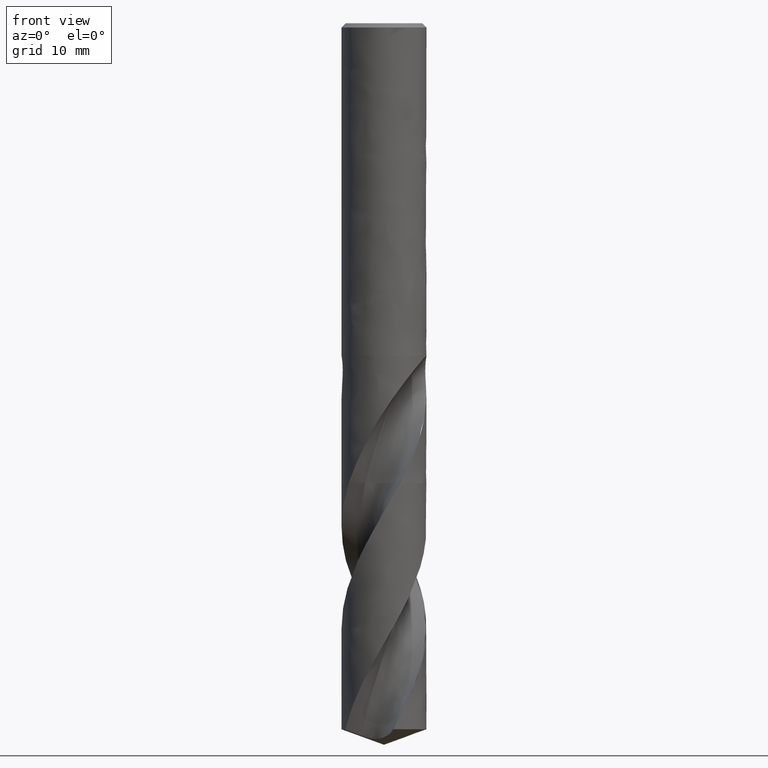
[diagram: clean part render]
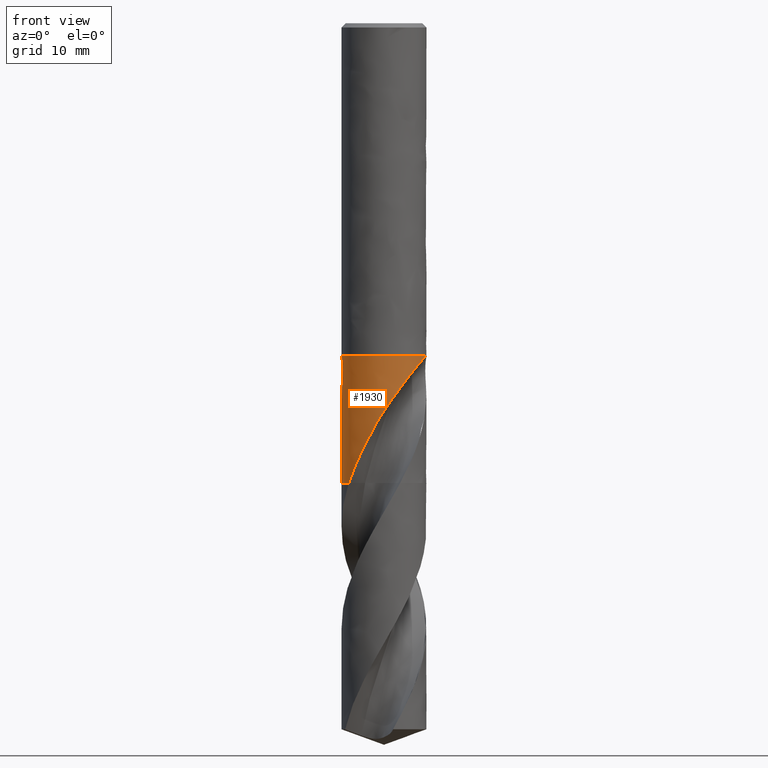
[diagram: same view with one face highlighted and labeled with its STEP entity id]
A machine part, front view. The second image highlights one B-rep face of the part: STEP entity #1930.
In plain terms, the highlighted face is a freeform B-spline surface patch.
Its self-contained STEP definition (entity closure, byte-faithful):
#143 = VERTEX_POINT('', #144);
#144 = CARTESIAN_POINT('', (-6., 3.24531401774049E-15, -47.));
#159 = EDGE_CURVE('', #160, #143, #162, .T.);
#160 = VERTEX_POINT('', #161);
#161 = CARTESIAN_POINT('', (5.94290858804293, -0.82573453007949, -47.));
#162 = CIRCLE('', #163, 6.);
#163 = AXIS2_PLACEMENT_3D('', #164, #165, #166);
#164 = CARTESIAN_POINT('', (1.76221774462768E-31, 2.87791997799628E-15, -47.));
#165 = DIRECTION('', (3.74939945665464E-33, 6.12323399573677E-17, -1.));
#166 = DIRECTION('', (-1., 6.12323399573677E-17, 0.));
#487 = VERTEX_POINT('', #488);
#488 = CARTESIAN_POINT('', (-4.98682465061266, -3.33640223954515, -65.));
#497 = VERTEX_POINT('', #498);
#498 = CARTESIAN_POINT('', (3.07263707445344, -5.15353290556044, -50.5253214813582));
#518 = EDGE_CURVE('', #497, #487, #519, .T.);
#519 = B_SPLINE_CURVE_WITH_KNOTS('', 3, (#520, #521, #522, #523, #524, #525, #526, #527, #528, #529, #530, #531, #532, #533, #534, #535, #536, #537, #538, #539, #540, #541, #542, #543, #544, #545, #546, #547, #548, #549, #550, #551, #552, #553, #554, #555, #556, #557, #558, #559, #560, #561, #562, #563, #564, #565, #566, #567, #568, #569, #570, #571, #572, #573, #574, #575, #576, #577, #578, #579, #580, #581, #582, #583, #584, #585, #586, #587, #588, #589, #590, #591, #592, #593, #594, #595, #596, #597, #598, #599, #600, #601, #602, #603, #604, #605, #606, #607, #608, #609, #610, #611, #612, #613, #614, #615, #616, #617, #618, #619, #620, #621, #622, #623, #624, #625, #626, #627, #628, #629, #630, #631, #632, #633, #634, #635, #636, #637), .UNSPECIFIED., .F., .U., (4, 3, 3, 3, 3, 3, 3, 3, 3, 3, 3, 3, 3, 3, 3, 3, 3, 3, 3, 3, 3, 3, 3, 3, 3, 3, 3, 3, 3, 3, 3, 3, 3, 3, 3, 3, 3, 3, 3, 4), (0., 0.441766088913571, 0.883576559323916, 1.32543345716794, 1.76735144714841, 2.20933782131439, 2.65139363075265, 3.09352578639469, 3.53573998083031, 3.97803517750119, 4.42042142618242, 4.86290743889696, 5.30548671905854, 5.36385870583969, 5.42224640824366, 6.08836712712216, 6.53215604431751, 6.97597839490642, 7.41988613386226, 7.71569451492108, 7.84710147915632, 8.14285302073286, 8.4385237322653, 8.73416378798733, 9.02982522817184, 9.226937498649, 9.89249301297721, 10.3360081538628, 11.0012860851875, 11.6665587032299, 12.3317921750806, 12.775221647792, 13.0708217488407, 13.5142463883165, 13.9576680514504, 14.1547261503256, 14.81978005296, 15.4847778590541, 16.4820850798119, 17.1356959616249), .UNSPECIFIED.);
#520 = CARTESIAN_POINT('', (3.07263707445344, -5.15353290556044, -50.5253214813582));
#521 = CARTESIAN_POINT('', (2.99098200325047, -5.20221725544102, -50.6377778077579));
#522 = CARTESIAN_POINT('', (2.90859948633451, -5.24870389370939, -50.7506810689435));
#523 = CARTESIAN_POINT('', (2.82564060557854, -5.29299113622021, -50.8639974674844));
#524 = CARTESIAN_POINT('', (2.74267339045878, -5.33728282799538, -50.9773252502205));
#525 = CARTESIAN_POINT('', (2.65910911615468, -5.37938560406396, -51.0910940612964));
#526 = CARTESIAN_POINT('', (2.57510131894059, -5.41930375575962, -51.2052769420507));
#527 = CARTESIAN_POINT('', (2.49108469380889, -5.45922610223442, -51.3194718216563));
#528 = CARTESIAN_POINT('', (2.40660693622636, -5.49697176729273, -51.4341100190792));
#529 = CARTESIAN_POINT('', (2.32181675030575, -5.53255519430214, -51.5491643613202));
#530 = CARTESIAN_POINT('', (2.2370148411018, -5.56814354115685, -51.6642346112355));
#531 = CARTESIAN_POINT('', (2.15187858551374, -5.60157837522988, -51.7797450436145));
#532 = CARTESIAN_POINT('', (2.06654590740913, -5.63288451972615, -51.8956644812267));
#533 = CARTESIAN_POINT('', (1.98120002457917, -5.66419550866243, -52.0116018566837));
#534 = CARTESIAN_POINT('', (1.89563885042944, -5.69338398880709, -52.1279735681053));
#535 = CARTESIAN_POINT('', (1.81000186736834, -5.7204801581793, -52.2447548915675));
#536 = CARTESIAN_POINT('', (1.7243514308897, -5.74758058431146, -52.3615545611677));
#537 = CARTESIAN_POINT('', (1.63860840216947, -5.77259331998827, -52.4787894426988));
#538 = CARTESIAN_POINT('', (1.55291202427712, -5.79555555963839, -52.5964391751703));
#539 = CARTESIAN_POINT('', (1.46720084600665, -5.81852176503173, -52.7141092265931));
#540 = CARTESIAN_POINT('', (1.38151641340884, -5.83944230719226, -52.83221578066));
#541 = CARTESIAN_POINT('', (1.29598262931977, -5.85836402287374, -52.9507317463675));
#542 = CARTESIAN_POINT('', (1.21043297421031, -5.87728924952972, -53.0692697030267));
#543 = CARTESIAN_POINT('', (1.12501734710421, -5.89421854041989, -53.1882399604875));
#544 = CARTESIAN_POINT('', (1.03986058312745, -5.90920383534515, -53.3076213717175));
#545 = CARTESIAN_POINT('', (0.954688220627816, -5.92419187518995, -53.4270246505431));
#546 = CARTESIAN_POINT('', (0.869759903058173, -5.93723778214373, -53.5468619356356));
#547 = CARTESIAN_POINT('', (0.785201154371696, -5.94839971313069, -53.6671172680899));
#548 = CARTESIAN_POINT('', (0.700624998206869, -5.95956394194107, -53.7873973566117));
#549 = CARTESIAN_POINT('', (0.616400302953245, -5.9688461237926, -53.9081145095794));
#550 = CARTESIAN_POINT('', (0.532628935123585, -5.97631210843854, -54.0292412320504));
#551 = CARTESIAN_POINT('', (0.448838675726758, -5.98377977676417, -54.1503952702222));
#552 = CARTESIAN_POINT('', (0.365487523533314, -5.98943164211378, -54.2719793842862));
#553 = CARTESIAN_POINT('', (0.282678883763566, -5.99333735481945, -54.3939726184964));
#554 = CARTESIAN_POINT('', (0.199852789542825, -5.99724389077341, -54.5159915665082));
#555 = CARTESIAN_POINT('', (0.11755604981945, -5.99940405403453, -54.6384395530928));
#556 = CARTESIAN_POINT('', (0.0358970654855363, -5.99989261576319, -54.7613037796435));
#557 = CARTESIAN_POINT('', (0.0251270241217345, -5.99995705239645, -54.7775083995378));
#558 = CARTESIAN_POINT('', (0.0143679389507317, -5.99999242330048, -54.7937204480953));
#559 = CARTESIAN_POINT('', (0.00362004190757102, -5.99999890794128, -54.8099398906281));
#560 = CARTESIAN_POINT('', (-0.00713074881636408, -6.00000539432795, -54.8261636999583));
#561 = CARTESIAN_POINT('', (-0.0178703741998544, -5.99998297891506, -54.8423949507268));
#562 = CARTESIAN_POINT('', (-0.0285986046972226, -5.99993184293033, -54.8586336079359));
#563 = CARTESIAN_POINT('', (-0.150992470476672, -5.99934845400585, -55.0438936124975));
#564 = CARTESIAN_POINT('', (-0.271922034401436, -5.99502420455087, -55.2301523278781));
#565 = CARTESIAN_POINT('', (-0.391070009466384, -5.98724178964704, -55.4173555919239));
#566 = CARTESIAN_POINT('', (-0.470449841592182, -5.98205691941939, -55.5420758287997));
#567 = CARTESIAN_POINT('', (-0.549054321267223, -5.97533684099636, -55.6672377789816));
#568 = CARTESIAN_POINT('', (-0.62679954595886, -5.96717037876317, -55.7928250675349));
#569 = CARTESIAN_POINT('', (-0.704550627684312, -5.95900330129932, -55.9184218173638));
#570 = CARTESIAN_POINT('', (-0.781456442852684, -5.94938856870091, -56.0444588857228));
#571 = CARTESIAN_POINT('', (-0.857469887465681, -5.93841269971131, -56.1709023986815));
#572 = CARTESIAN_POINT('', (-0.933497956542478, -5.92743471904003, -56.2973702385023));
#573 = CARTESIAN_POINT('', (-1.0086440688934, -5.91509294148382, -56.4242606440794));
#574 = CARTESIAN_POINT('', (-1.08282041152156, -5.90148286080677, -56.5515694566352));
#575 = CARTESIAN_POINT('', (-1.13224956514999, -5.89241346287145, -56.6364046834894));
#576 = CARTESIAN_POINT('', (-1.18125066661704, -5.88278044148233, -56.7214322330153));
#577 = CARTESIAN_POINT('', (-1.22978480542549, -5.87261690665624, -56.8066592877145));
#578 = CARTESIAN_POINT('', (-1.25134512707615, -5.86810195933591, -56.8445197042742));
#579 = CARTESIAN_POINT('', (-1.27281341154554, -5.86348233494452, -56.8824203295155));
#580 = CARTESIAN_POINT('', (-1.29418591082247, -5.8587612025264, -56.9203620024413));
#581 = CARTESIAN_POINT('', (-1.34228800073288, -5.84813556941196, -57.0057555607134));
#582 = CARTESIAN_POINT('', (-1.3899043268416, -5.83699610502187, -57.091361748714));
#583 = CARTESIAN_POINT('', (-1.43704590608926, -5.82536686087599, -57.1771592260303));
#584 = CARTESIAN_POINT('', (-1.48417460136035, -5.81374079504767, -57.2629332545631));
#585 = CARTESIAN_POINT('', (-1.53083110365751, -5.80162509971524, -57.3489028085465));
#586 = CARTESIAN_POINT('', (-1.57707960289368, -5.78902581840302, -57.4350178346695));
#587 = CARTESIAN_POINT('', (-1.62332330698048, -5.77642784341287, -57.5211239321911));
#588 = CARTESIAN_POINT('', (-1.66916129333533, -5.76334623252322, -57.6073791027117));
#589 = CARTESIAN_POINT('', (-1.71471018702477, -5.74976251461862, -57.6937054026642));
#590 = CARTESIAN_POINT('', (-1.76026237539161, -5.73617781416616, -57.7800379468365));
#591 = CARTESIAN_POINT('', (-1.80552758106137, -5.72209071829872, -57.8664446305274));
#592 = CARTESIAN_POINT('', (-1.85066935546914, -5.70745327941696, -57.9528206672561));
#593 = CARTESIAN_POINT('', (-1.88076458074211, -5.69769475693207, -58.0104060483724));
#594 = CARTESIAN_POINT('', (-1.91081598803632, -5.68768739601938, -58.067972727301));
#595 = CARTESIAN_POINT('', (-1.9408231554133, -5.67742947815396, -58.1255172534586));
#596 = CARTESIAN_POINT('', (-2.04214325927477, -5.64279330971895, -58.319818078115));
#597 = CARTESIAN_POINT('', (-2.14292901535007, -5.60530709994064, -58.5139114109122));
#598 = CARTESIAN_POINT('', (-2.24287785525286, -5.56502461148343, -58.7078335308426));
#599 = CARTESIAN_POINT('', (-2.30948210216618, -5.53818103020628, -58.8370600108133));
#600 = CARTESIAN_POINT('', (-2.37572359121249, -5.51009336363463, -58.9662216148101));
#601 = CARTESIAN_POINT('', (-2.44154016853884, -5.48077381447285, -59.095313554428));
#602 = CARTESIAN_POINT('', (-2.54026580916324, -5.43679414565078, -59.2889529832154));
#603 = CARTESIAN_POINT('', (-2.63805506271094, -5.39003407684001, -59.4824610873492));
#604 = CARTESIAN_POINT('', (-2.73475083034436, -5.34051850440861, -59.6757880859192));
#605 = CARTESIAN_POINT('', (-2.83144582571121, -5.29100332743631, -59.8691135404715));
#606 = CARTESIAN_POINT('', (-2.92706458651392, -5.23872358627581, -60.0622925416913));
#607 = CARTESIAN_POINT('', (-3.02143697281765, -5.18371668007526, -60.2552808813158));
#608 = CARTESIAN_POINT('', (-3.11580380603016, -5.12871301060931, -60.4482578650565));
#609 = CARTESIAN_POINT('', (-3.20893791474158, -5.0709732742863, -60.6410815347988));
#610 = CARTESIAN_POINT('', (-3.30061804043513, -5.0105808596563, -60.8337421948385));
#611 = CARTESIAN_POINT('', (-3.36172992297662, -4.97032465231207, -60.9621654003875));
#612 = CARTESIAN_POINT('', (-3.4222019177312, -4.92888627290925, -61.090529639312));
#613 = CARTESIAN_POINT('', (-3.48196816854973, -4.88629692847318, -61.2188335252415));
#614 = CARTESIAN_POINT('', (-3.52180970112364, -4.85790590962203, -61.3043637932541));
#615 = CARTESIAN_POINT('', (-3.561339040858, -4.82900255714176, -61.3898715410379));
#616 = CARTESIAN_POINT('', (-3.60053949735641, -4.79959532960607, -61.4753546598073));
#617 = CARTESIAN_POINT('', (-3.65934342952161, -4.75548205216898, -61.6035864194957));
#618 = CARTESIAN_POINT('', (-3.71741318566688, -4.7102299395133, -61.7317702758457));
#619 = CARTESIAN_POINT('', (-3.774675846421, -4.66388488863585, -61.8599123525405));
#620 = CARTESIAN_POINT('', (-3.83193812281838, -4.61754014883429, -61.9880535691238));
#621 = CARTESIAN_POINT('', (-3.88839780789576, -4.57009832314216, -62.1161638547184));
#622 = CARTESIAN_POINT('', (-3.94396156718321, -4.52163323994568, -62.244268417313));
#623 = CARTESIAN_POINT('', (-3.96865429124671, -4.50009519173886, -62.301198521683));
#624 = CARTESIAN_POINT('', (-3.99317046417277, -4.47835491323175, -62.3581293267993));
#625 = CARTESIAN_POINT('', (-4.01750101590305, -4.45642071479096, -62.4150641150845));
#626 = CARTESIAN_POINT('', (-4.09961450666457, -4.3823947074486, -62.6072140615257));
#627 = CARTESIAN_POINT('', (-4.17962617813435, -4.30614890417696, -62.7994311947876));
#628 = CARTESIAN_POINT('', (-4.25743424991802, -4.22779536018774, -62.9916568516472));
#629 = CARTESIAN_POINT('', (-4.33523575867932, -4.14944842523085, -63.1838662944913));
#630 = CARTESIAN_POINT('', (-4.41085012118886, -4.06897876957713, -63.3761199228162));
#631 = CARTESIAN_POINT('', (-4.48419779771884, -3.98647339272865, -63.5683405461631));
#632 = CARTESIAN_POINT('', (-4.59419841239576, -3.86273883702293, -63.8566167087091));
#633 = CARTESIAN_POINT('', (-4.699127034229, -3.73438435282116, -64.1449266826276));
#634 = CARTESIAN_POINT('', (-4.79853724886734, -3.60194950981168, -64.433183760563));
#635 = CARTESIAN_POINT('', (-4.86368828427409, -3.51515493666457, -64.622100434359));
#636 = CARTESIAN_POINT('', (-4.92649119627612, -3.42658092177235, -64.8110684130695));
#637 = CARTESIAN_POINT('', (-4.98682465061266, -3.33640223954515, -65.));
#947 = EDGE_CURVE('', #497, #160, #948, .T.);
#948 = B_SPLINE_CURVE_WITH_KNOTS('', 3, (#949, #950, #951, #952, #953, #954, #955, #956, #957, #958, #959, #960, #961, #962, #963, #964, #965, #966, #967, #968, #969, #970, #971, #972, #973, #974, #975, #976, #977, #978, #979, #980, #981, #982, #983, #984, #985, #986, #987, #988, #989, #990, #991, #992, #993, #994, #995, #996, #997, #998, #999, #1000, #1001, #1002, #1003), .UNSPECIFIED., .F., .U., (4, 3, 3, 3, 3, 3, 3, 3, 3, 3, 3, 3, 3, 3, 3, 3, 3, 3, 4), (0., 0.447159308576856, 0.894501426815508, 1.34199283165222, 1.78960488599944, 2.23730326023504, 2.68504079111436, 3.13278356038714, 3.58049137378091, 4.028113729028, 4.47558457469612, 4.77284318338197, 5.06999479588034, 5.36700600922901, 5.66383356324736, 5.96042103289371, 6.25669474351854, 6.45383857752828, 6.55352230511691), .UNSPECIFIED.);
#949 = CARTESIAN_POINT('', (3.07263707445343, -5.15353290556044, -50.5253214813582));
#950 = CARTESIAN_POINT('', (3.15528901650427, -5.10425420179064, -50.4114922526782));
#951 = CARTESIAN_POINT('', (3.23837173146314, -5.05202206801914, -50.2992010550941));
#952 = CARTESIAN_POINT('', (3.32156064421216, -4.99672241442537, -50.1885738406308));
#953 = CARTESIAN_POINT('', (3.40478356662332, -4.94140015298071, -50.0779013990564));
#954 = CARTESIAN_POINT('', (3.48815579888668, -4.88297882093001, -49.9688310276712));
#955 = CARTESIAN_POINT('', (3.57132752922709, -4.82137114097065, -49.8614906634449));
#956 = CARTESIAN_POINT('', (3.65452701556045, -4.75974290135331, -49.7541144776915));
#957 = CARTESIAN_POINT('', (3.73757526072159, -4.69488945778909, -49.648405407803));
#958 = CARTESIAN_POINT('', (3.82011020580276, -4.62674378105396, -49.5445112823955));
#959 = CARTESIAN_POINT('', (3.90266740338, -4.55857973135691, -49.4405891457789));
#960 = CARTESIAN_POINT('', (3.98476453838433, -4.48707732756097, -49.3384152666513));
#961 = CARTESIAN_POINT('', (4.06602612007378, -4.41219124595453, -49.238163238518));
#962 = CARTESIAN_POINT('', (4.14730337267868, -4.33729072291795, -49.1378918772506));
#963 = CARTESIAN_POINT('', (4.22780367674152, -4.25895036653134, -49.0394734362694));
#964 = CARTESIAN_POINT('', (4.30712739843145, -4.17715855261458, -48.9430977526867));
#965 = CARTESIAN_POINT('', (4.38645805794133, -4.09535958501332, -48.8467136398835));
#966 = CARTESIAN_POINT('', (4.46467405715544, -4.01004433113902, -48.7522958471404));
#967 = CARTESIAN_POINT('', (4.54136378760814, -3.92122620472237, -48.6600768279377));
#968 = CARTESIAN_POINT('', (4.61805441530745, -3.83240703916055, -48.5678567298005));
#969 = CARTESIAN_POINT('', (4.6932859377557, -3.74000684539077, -48.4777540808011));
#970 = CARTESIAN_POINT('', (4.7666316698093, -3.64406675630002, -48.3900571826619));
#971 = CARTESIAN_POINT('', (4.83997167566315, -3.54813415738081, -48.3023671311373));
#972 = CARTESIAN_POINT('', (4.91149852240233, -3.44856714575725, -48.216995041808));
#973 = CARTESIAN_POINT('', (4.98076586881304, -3.34544038357689, -48.1343012042272));
#974 = CARTESIAN_POINT('', (5.05001999352229, -3.24233330615901, -48.0516231511869));
#975 = CARTESIAN_POINT('', (5.1170934178127, -3.13555099207174, -47.9715278179457));
#976 = CARTESIAN_POINT('', (5.18151508347695, -3.02521097441168, -47.8944707407025));
#977 = CARTESIAN_POINT('', (5.24591494393123, -2.91490830423755, -47.8174397454573));
#978 = CARTESIAN_POINT('', (5.30774888772332, -2.80090487283445, -47.7433420900743));
#979 = CARTESIAN_POINT('', (5.36651552374724, -2.68337681539135, -47.6727628189911));
#980 = CARTESIAN_POINT('', (5.40555468938392, -2.60530194822336, -47.6258764215255));
#981 = CARTESIAN_POINT('', (5.44327268841397, -2.52560803941443, -47.5805055612558));
#982 = CARTESIAN_POINT('', (5.47951369507825, -2.44436692528964, -47.5368644520132));
#983 = CARTESIAN_POINT('', (5.51574165704195, -2.36315505334396, -47.493239051087));
#984 = CARTESIAN_POINT('', (5.5505216476237, -2.28033378658108, -47.4513078252821));
#985 = CARTESIAN_POINT('', (5.58369005481823, -2.19599758008154, -47.411329455926));
#986 = CARTESIAN_POINT('', (5.61684279049704, -2.11170122102412, -47.3713699756784));
#987 = CARTESIAN_POINT('', (5.64841488233848, -2.02581548080967, -47.3333251313223));
#988 = CARTESIAN_POINT('', (5.67823453135167, -1.93846656070345, -47.2975104027321));
#989 = CARTESIAN_POINT('', (5.70803574113926, -1.85117165352149, -47.2617178204744));
#990 = CARTESIAN_POINT('', (5.73611755561107, -1.76232300804204, -47.2281142428784));
#991 = CARTESIAN_POINT('', (5.7623003290774, -1.67209297514058, -47.1970880377349));
#992 = CARTESIAN_POINT('', (5.78846192501274, -1.58193592340443, -47.1660869276572));
#993 = CARTESIAN_POINT('', (5.81275976644524, -1.49028515451332, -47.1376191466202));
#994 = CARTESIAN_POINT('', (5.83500837658663, -1.39738228311507, -47.1121662933729));
#995 = CARTESIAN_POINT('', (5.85723344998806, -1.30457769339427, -47.086740366625));
#996 = CARTESIAN_POINT('', (5.87744674406144, -1.21037847489744, -47.0642829665193));
#997 = CARTESIAN_POINT('', (5.89546253809482, -1.1151329346408, -47.0453927113992));
#998 = CARTESIAN_POINT('', (5.90745044853406, -1.05175548903847, -47.0328229247923));
#999 = CARTESIAN_POINT('', (5.91847810992604, -0.987851314957857, -47.021821451597));
#1000 = CARTESIAN_POINT('', (5.92849326167833, -0.923562475544863, -47.0125990871807));
#1001 = CARTESIAN_POINT('', (5.93355731891375, -0.891055493080894, -47.0079358946096));
#1002 = CARTESIAN_POINT('', (5.93836452625584, -0.858438677520828, -47.0037261497771));
#1003 = CARTESIAN_POINT('', (5.94290858804293, -0.82573453007948, -47.));
#1157 = VERTEX_POINT('', #1158);
#1158 = CARTESIAN_POINT('', (-6., 3.24700694994184E-15, -47.027647680989));
#1165 = EDGE_CURVE('', #143, #1157, #1166, .T.);
#1166 = LINE('', #1167, #1168);
#1167 = CARTESIAN_POINT('', (-6., 3.24531401774049E-15, -47.));
#1168 = VECTOR('', #1169, 0.0276476809890056);
#1169 = DIRECTION('', (0., 1.69293220135195E-18, -0.0276476809890056));
#1526 = VERTEX_POINT('', #1527);
#1527 = CARTESIAN_POINT('', (-6., 3.61510719990257E-15, -53.0391809690688));
#1558 = EDGE_CURVE('', #1526, #1157, #1559, .T.);
#1559 = B_SPLINE_CURVE_WITH_KNOTS('', 3, (#1560, #1561, #1562, #1563, #1564, #1565, #1566, #1567, #1568, #1569, #1570, #1571, #1572, #1573, #1574, #1575, #1576, #1577, #1578, #1579, #1580, #1581, #1582, #1583, #1584, #1585, #1586, #1587, #1588, #1589, #1590, #1591, #1592, #1593, #1594, #1595, #1596, #1597, #1598, #1599, #1600, #1601, #1602, #1603, #1604, #1605, #1606, #1607, #1608, #1609, #1610, #1611, #1612, #1613, #1614, #1615, #1616, #1617, #1618, #1619, #1620, #1621, #1622, #1623, #1624, #1625, #1626, #1627, #1628, #1629, #1630, #1631, #1632, #1633, #1634, #1635, #1636, #1637, #1638, #1639, #1640, #1641, #1642, #1643, #1644), .UNSPECIFIED., .F., .U., (4, 3, 3, 3, 3, 3, 3, 3, 3, 3, 3, 3, 3, 3, 3, 3, 3, 3, 3, 3, 3, 3, 3, 3, 3, 3, 3, 3, 4), (0., 0.442234671472692, 0.884176655007763, 1.32584633101134, 1.76729736371475, 2.20859956909362, 2.64984190490416, 2.94449415056847, 3.23921142550663, 3.53404094678308, 3.82904842199824, 4.12431872751459, 4.41996212476171, 4.71612162374496, 4.80378305284401, 5.00151558607028, 5.19954313611023, 5.39790018250638, 5.5965998044623, 5.72878684196655, 5.86104216713565, 5.99334062313169, 6.12564952525343, 6.25793148858375, 6.39014875491062, 6.52226791677583, 6.65426367040815, 6.78612065258369, 6.97172160856965), .UNSPECIFIED.);
#1560 = CARTESIAN_POINT('', (-6., 2.72335091303325E-15, -53.0391809690688));
#1561 = CARTESIAN_POINT('', (-6., -0.0764952896106874, -52.9131705018409));
#1562 = CARTESIAN_POINT('', (-5.99853316179752, -0.151554233559389, -52.7862644654572));
#1563 = CARTESIAN_POINT('', (-5.99578821435207, -0.224774750888141, -52.6583528229486));
#1564 = CARTESIAN_POINT('', (-5.99304508361855, -0.29794680805854, -52.5305258372913));
#1565 = CARTESIAN_POINT('', (-5.98902466926164, -0.369305378526787, -52.401659614661));
#1566 = CARTESIAN_POINT('', (-5.98396063509596, -0.43842344556599, -52.2716655326967));
#1567 = CARTESIAN_POINT('', (-5.97889972119198, -0.507498924729594, -52.1417515480505));
#1568 = CARTESIAN_POINT('', (-5.97279496230771, -0.574359459827825, -52.0106655538256));
#1569 = CARTESIAN_POINT('', (-5.96592371941822, -0.638556320212272, -51.8783544537023));
#1570 = CARTESIAN_POINT('', (-5.95905587805549, -0.702721400707408, -51.7461088526095));
#1571 = CARTESIAN_POINT('', (-5.95141936944364, -0.764254550531294, -51.6125827377498));
#1572 = CARTESIAN_POINT('', (-5.94333383309897, -0.822668188482513, -51.4777654732335));
#1573 = CARTESIAN_POINT('', (-5.93525102264835, -0.881062133319869, -51.3429936599481));
#1574 = CARTESIAN_POINT('', (-5.92671484589588, -0.936372949955777, -51.2068577604802));
#1575 = CARTESIAN_POINT('', (-5.91809009971935, -0.988033183452754, -51.069397001341));
#1576 = CARTESIAN_POINT('', (-5.90946652362496, -1.03968640842849, -50.9319548909106));
#1577 = CARTESIAN_POINT('', (-5.9007484402917, -1.08772893771813, -50.7930895628295));
#1578 = CARTESIAN_POINT('', (-5.89234347878805, -1.13149826689391, -50.6529240967537));
#1579 = CARTESIAN_POINT('', (-5.88673082428783, -1.16072649384809, -50.5593245801345));
#1580 = CARTESIAN_POINT('', (-5.88125583161708, -1.18806246102817, -50.4650998144497));
#1581 = CARTESIAN_POINT('', (-5.87605081749833, -1.21327111157282, -50.3703153620405));
#1582 = CARTESIAN_POINT('', (-5.87084465464139, -1.23848532562586, -50.2755099908559));
#1583 = CARTESIAN_POINT('', (-5.86590601758091, -1.26158466444022, -50.1800951936266));
#1584 = CARTESIAN_POINT('', (-5.86137609966964, -1.2822910037201, -50.0841699806491));
#1585 = CARTESIAN_POINT('', (-5.85684445648897, -1.30300522923862, -49.9882082334918));
#1586 = CARTESIAN_POINT('', (-5.85271908193239, -1.32133877790692, -49.8916728377694));
#1587 = CARTESIAN_POINT('', (-5.84914815993253, -1.33696140675708, -49.7947117433546));
#1588 = CARTESIAN_POINT('', (-5.84557508258665, -1.35259346515257, -49.6976921249203));
#1589 = CARTESIAN_POINT('', (-5.84255448514398, -1.36552520632076, -49.6001649198827));
#1590 = CARTESIAN_POINT('', (-5.84023940524675, -1.375355841011, -49.5023491056235));
#1591 = CARTESIAN_POINT('', (-5.83792226278096, -1.38519523408498, -49.4044461445558));
#1592 = CARTESIAN_POINT('', (-5.83631004536905, -1.39193950402212, -49.3061465243367));
#1593 = CARTESIAN_POINT('', (-5.835555584755, -1.39509534342091, -49.207776589611));
#1594 = CARTESIAN_POINT('', (-5.83480017083473, -1.39825517041196, -49.109282358576));
#1595 = CARTESIAN_POINT('', (-5.83490527160836, -1.39782083652623, -49.0105726170198));
#1596 = CARTESIAN_POINT('', (-5.83600961396759, -1.39319481253622, -48.9121396498087));
#1597 = CARTESIAN_POINT('', (-5.83711588416628, -1.38856071294218, -48.8135348491464));
#1598 = CARTESIAN_POINT('', (-5.8392296117308, -1.37970921434682, -48.7150090331104));
#1599 = CARTESIAN_POINT('', (-5.84244895763612, -1.36593930224464, -48.6173072892207));
#1600 = CARTESIAN_POINT('', (-5.84340186464668, -1.36186349114425, -48.5883881611015));
#1601 = CARTESIAN_POINT('', (-5.8444515792772, -1.35735465868347, -48.55952942579));
#1602 = CARTESIAN_POINT('', (-5.84559938793297, -1.35239335838271, -48.5307561000578));
#1603 = CARTESIAN_POINT('', (-5.84818842983543, -1.34120245621915, -48.4658538660325));
#1604 = CARTESIAN_POINT('', (-5.85128120946209, -1.3276967427971, -48.4013157027801));
#1605 = CARTESIAN_POINT('', (-5.85487618940117, -1.3116496509294, -48.337489326003));
#1606 = CARTESIAN_POINT('', (-5.85847653304803, -1.29557861681086, -48.2735677203123));
#1607 = CARTESIAN_POINT('', (-5.86258749675631, -1.27692935892887, -48.2102523170132));
#1608 = CARTESIAN_POINT('', (-5.86717544927608, -1.25548884798395, -48.1479910331508));
#1609 = CARTESIAN_POINT('', (-5.87177103565102, -1.23401266235523, -48.0856261532678));
#1610 = CARTESIAN_POINT('', (-5.87685587371656, -1.20968695866653, -48.0241877611555));
#1611 = CARTESIAN_POINT('', (-5.88235058119527, -1.18235004965184, -47.9642358987878));
#1612 = CARTESIAN_POINT('', (-5.88785477839225, -1.15496592801186, -47.9041804956425));
#1613 = CARTESIAN_POINT('', (-5.89378545615652, -1.12448341909998, -47.8454615074204));
#1614 = CARTESIAN_POINT('', (-5.90000415260812, -1.09084875175568, -47.7887440081913));
#1615 = CARTESIAN_POINT('', (-5.90414120658428, -1.06847293146011, -47.7510120884024));
#1616 = CARTESIAN_POINT('', (-5.90841143326532, -1.0446668483912, -47.7141027458308));
#1617 = CARTESIAN_POINT('', (-5.91275821970613, -1.01945585255175, -47.6782279432964));
#1618 = CARTESIAN_POINT('', (-5.91710725169159, -0.994231832742108, -47.6423346078821));
#1619 = CARTESIAN_POINT('', (-5.92153960607126, -0.96756149789243, -47.6074216414804));
#1620 = CARTESIAN_POINT('', (-5.9259866246311, -0.939511854474316, -47.5737031256208));
#1621 = CARTESIAN_POINT('', (-5.93043509344323, -0.911453063565811, -47.5399736135501));
#1622 = CARTESIAN_POINT('', (-5.93490556160649, -0.881966124625048, -47.5073829590248));
#1623 = CARTESIAN_POINT('', (-5.93931984449806, -0.851163782568084, -47.4761340480533));
#1624 = CARTESIAN_POINT('', (-5.94373447593606, -0.820359008395533, -47.4448826697056));
#1625 = CARTESIAN_POINT('', (-5.94810051791189, -0.788183355746707, -47.4149179191089));
#1626 = CARTESIAN_POINT('', (-5.95233449730296, -0.75479403297887, -47.3864170721951));
#1627 = CARTESIAN_POINT('', (-5.95656761463347, -0.721411508453535, -47.3579220282043));
#1628 = CARTESIAN_POINT('', (-5.96067616149013, -0.68675470719991, -47.3308382906371));
#1629 = CARTESIAN_POINT('', (-5.96457673467637, -0.651017953792322, -47.3053049840992));
#1630 = CARTESIAN_POINT('', (-5.96847540015433, -0.615298678662197, -47.2797841654951));
#1631 = CARTESIAN_POINT('', (-5.97217311134702, -0.578435742733699, -47.2557656043812));
#1632 = CARTESIAN_POINT('', (-5.97559197309405, -0.540648287795039, -47.23334244617));
#1633 = CARTESIAN_POINT('', (-5.97900829806507, -0.502888870933608, -47.2109359258151));
#1634 = CARTESIAN_POINT('', (-5.98215199206947, -0.46414038586301, -47.1900825541768));
#1635 = CARTESIAN_POINT('', (-5.98495509534801, -0.424632201639376, -47.1708278668565));
#1636 = CARTESIAN_POINT('', (-5.9877555803385, -0.385160920731892, -47.1515911647165));
#1637 = CARTESIAN_POINT('', (-5.99022064252607, -0.344866722958231, -47.1339177000504));
#1638 = CARTESIAN_POINT('', (-5.99229496549659, -0.303975404408208, -47.1178095439381));
#1639 = CARTESIAN_POINT('', (-5.99436710766345, -0.263127076239988, -47.1017183228576));
#1640 = CARTESIAN_POINT('', (-5.9960524823185, -0.221621553159337, -47.0871639862893));
#1641 = CARTESIAN_POINT('', (-5.99730927731239, -0.179670343305672, -47.0741131801334));
#1642 = CARTESIAN_POINT('', (-5.99907833306123, -0.120620116877451, -47.0557429576473));
#1643 = CARTESIAN_POINT('', (-6., -0.0605566199013844, -47.0403133692757));
#1644 = CARTESIAN_POINT('', (-6., 2.2478062277792E-15, -47.027647680989));
#1860 = VERTEX_POINT('', #1861);
#1861 = CARTESIAN_POINT('', (-6., 4.3474961369731E-15, -65.));
#1868 = EDGE_CURVE('', #1526, #1860, #1869, .T.);
#1869 = LINE('', #1870, #1871);
#1870 = CARTESIAN_POINT('', (-6., 3.61510719990257E-15, -53.0391809690688));
#1871 = VECTOR('', #1872, 11.9608190309312);
#1872 = DIRECTION('', (0., 7.32388937070531E-16, -11.9608190309312));
#1930 = ADVANCED_FACE('', (#1931), #1946, .T.);
#1931 = FACE_OUTER_BOUND('', #1932, .T.);
#1932 = EDGE_LOOP('', (#1933, #1940, #1941, #1942, #1943, #1944, #1945));
#1933 = ORIENTED_EDGE('', *, *, #1934, .F.);
#1934 = EDGE_CURVE('', #487, #1860, #1935, .T.);
#1935 = CIRCLE('', #1936, 6.);
#1936 = AXIS2_PLACEMENT_3D('', #1937, #1938, #1939);
#1937 = CARTESIAN_POINT('', (2.43710964682552E-31, 3.9801020972289E-15, -65.));
#1938 = DIRECTION('', (3.74939945665464E-33, 6.12323399573677E-17, -1.));
#1939 = DIRECTION('', (-1., 6.12323399573677E-17, 0.));
#1940 = ORIENTED_EDGE('', *, *, #518, .F.);
#1941 = ORIENTED_EDGE('', *, *, #947, .T.);
#1942 = ORIENTED_EDGE('', *, *, #159, .T.);
#1943 = ORIENTED_EDGE('', *, *, #1165, .T.);
#1944 = ORIENTED_EDGE('', *, *, #1558, .F.);
#1945 = ORIENTED_EDGE('', *, *, #1868, .T.);
#1946 = (
   BOUNDED_SURFACE ()
   B_SPLINE_SURFACE (2, 1, ((#1947, #1948), (#1949, #1950), (#1951, #1952), (#1953, #1954), (#1955, #1956), (#1957, #1958), (#1959, #1960), (#1961, #1962), (#1963, #1964)), .UNSPECIFIED., .T., .F., .U.)
   B_SPLINE_SURFACE_WITH_KNOTS ((3, 2, 2, 2, 3), (2, 2), (0., 9.42477796076938, 18.8495559215388, 28.2743338823081, 37.6991118430775), (0., 0.340804664007016), .UNSPECIFIED.)
   GEOMETRIC_REPRESENTATION_ITEM ()
   RATIONAL_B_SPLINE_SURFACE (((1., 1.), (0.707106781186548, 0.707106781186548), (1., 1.), (0.707106781186548, 0.707106781186548), (1., 1.), (0.707106781186548, 0.707106781186548), (1., 1.), (0.707106781186548, 0.707106781186548), (1., 1.)))
   REPRESENTATION_ITEM ('')
   SURFACE ()
);
#1947 = CARTESIAN_POINT('', (-6., 3.24531401774049E-15, -47.));
#1948 = CARTESIAN_POINT('', (-6., 4.3474961369731E-15, -65.));
#1949 = CARTESIAN_POINT('', (-6., 6., -47.));
#1950 = CARTESIAN_POINT('', (-6., 6., -65.));
#1951 = CARTESIAN_POINT('', (1.4791141972894E-31, 6., -47.));
#1952 = CARTESIAN_POINT('', (2.46519032881566E-31, 6., -65.));
#1953 = CARTESIAN_POINT('', (6., 6., -47.));
#1954 = CARTESIAN_POINT('', (6., 6., -65.));
#1955 = CARTESIAN_POINT('', (6., 3.24531401774049E-15, -47.));
#1956 = CARTESIAN_POINT('', (6., 4.3474961369731E-15, -65.));
#1957 = CARTESIAN_POINT('', (6., -6., -47.));
#1958 = CARTESIAN_POINT('', (6., -6., -65.));
#1959 = CARTESIAN_POINT('', (7.34788079488412E-16, -6., -47.));
#1960 = CARTESIAN_POINT('', (7.34788079488412E-16, -6., -65.));
#1961 = CARTESIAN_POINT('', (-6., -6., -47.));
#1962 = CARTESIAN_POINT('', (-6., -6., -65.));
#1963 = CARTESIAN_POINT('', (-6., 3.24531401774049E-15, -47.));
#1964 = CARTESIAN_POINT('', (-6., 4.3474961369731E-15, -65.));